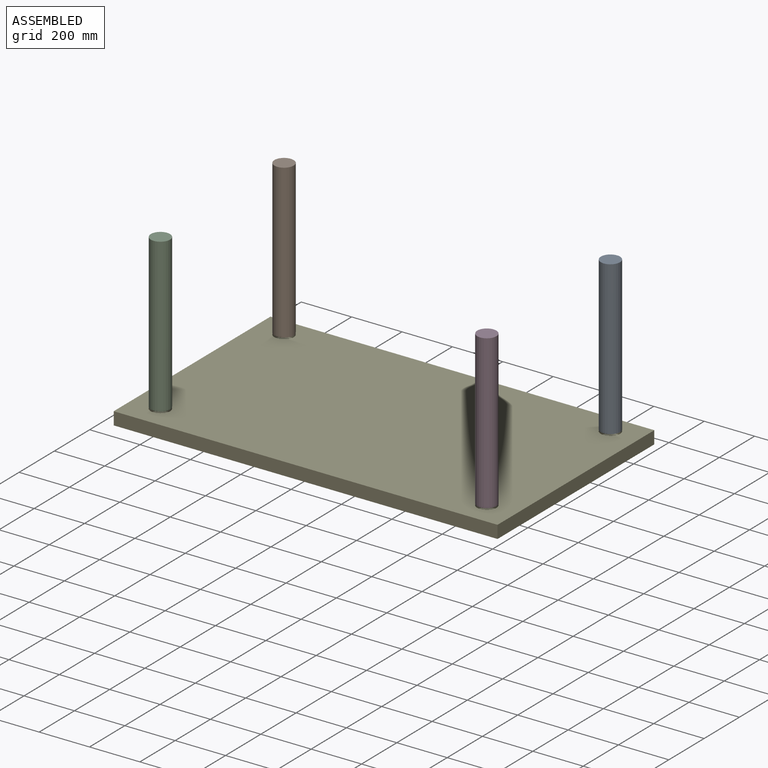
[diagram: assembled view]
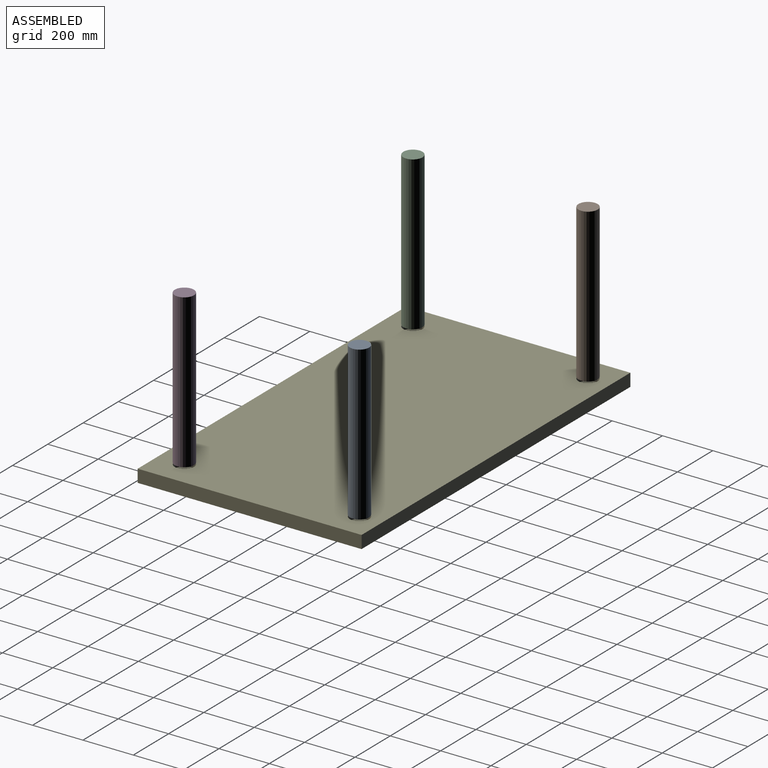
[diagram: assembled view, second angle]
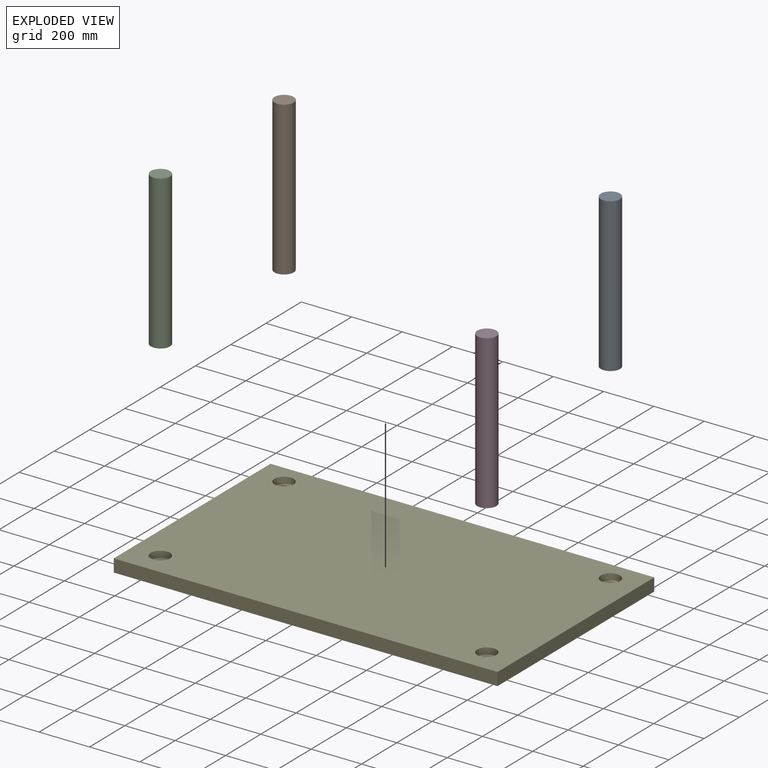
[diagram: exploded view]
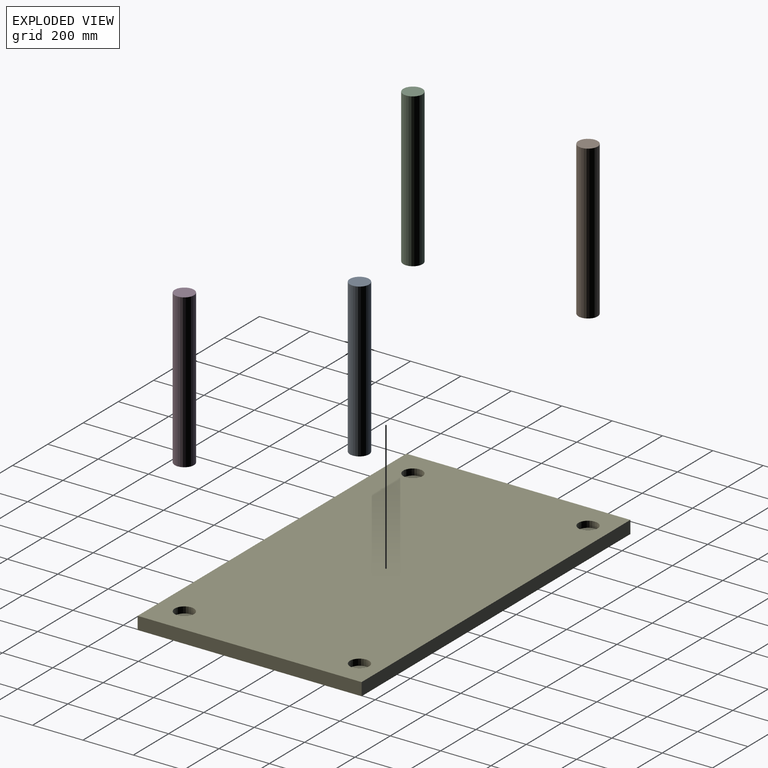
[diagram: exploded view, second angle]
ASSEMBLY  parts=5 mates=4
PART A: 3 faces, bbox 76.2x76.2x609.6 mm
  f0: cylinder r=38.1mm len=609.6mm, axis (0,0,-1), area 145931.8mm2, adj f1,f2
  f1: plane 76.2x76.2mm, normal (0,0,1), area 4560.4mm2, adj f0
  f2: plane 76.2x76.2mm, normal (0,0,-1), area 4560.4mm2, adj f0
PART B: same geometry as A
PART C: same geometry as A
PART D: same geometry as A
PART E: 14 faces, bbox 1524x889x50.8 mm
  f0: plane 889x50.8mm, normal (1,0,0), area 45161.2mm2, adj f1,f3,f4,f5
  f1: plane 1524x50.8mm, normal (0,1,0), area 77419.2mm2, adj f0,f2,f4,f5
  f2: plane 889x50.8mm, normal (-1,0,0), area 45161.2mm2, adj f1,f3,f4,f5
  f3: plane 1524x50.8mm, normal (0,-1,0), area 77419.2mm2, adj f0,f2,f4,f5
  f4: plane 1524x889mm, normal (0,0,-1), area 1354836mm2, adj f0,f1,f2,f3
  f5: plane 1524x889mm, normal (0,0,1), area 1336594.5mm2, adj f0,f1,f2,f3,f6,f8,f10,f12
  f6: cylinder r=38.1mm len=76.2mm, axis (0,0,1), area 6080.5mm2, adj f5,f7
  f7: plane 76.2x76.2mm, normal (0,0,1), area 4560.4mm2, adj f6
  f8: cylinder r=38.1mm len=76.2mm, axis (0,0,1), area 6080.5mm2, adj f5,f9
  f9: plane 76.2x76.2mm, normal (0,0,1), area 4560.4mm2, adj f8
  f10: cylinder r=38.1mm len=76.2mm, axis (0,0,1), area 6080.5mm2, adj f5,f11
  f11: plane 76.2x76.2mm, normal (0,0,1), area 4560.4mm2, adj f10
  f12: cylinder r=38.1mm len=76.2mm, axis (0,0,1), area 6080.5mm2, adj f5,f13
  f13: plane 76.2x76.2mm, normal (0,0,1), area 4560.4mm2, adj f12
PLACE A rot(axis=(0.99,0,0.11),0deg) t=(181.61,-462.01,-1404.19)mm
PLACE B rot(axis=(0.99,0,0.11),0deg) t=(-1114.31,-462.01,-1404.19)mm
PLACE C rot(axis=(0.99,0,0.11),0deg) t=(-1116.97,-1159.2,-1404.19)mm
PLACE D t=(178.95,-1159.2,-1404.19)mm
PLACE E rot(axis=(0.99,0,0.11),0deg) t=(-508.44,-860.77,-1410.71)mm
MATE slider A.f0 <-> E.f12  axis (0,0,-1) through (140.58,-503.65,-1404.19)mm
MATE slider D.f0 <-> E.f10  axis (0,0,-1) through (137.92,-1200.84,-1404.19)mm
MATE slider C.f0 <-> E.f8  axis (0,0,-1) through (-1158,-1200.84,-1404.19)mm
MATE slider B.f0 <-> E.f6  axis (0,0,-1) through (-1155.34,-503.65,-1404.19)mm
